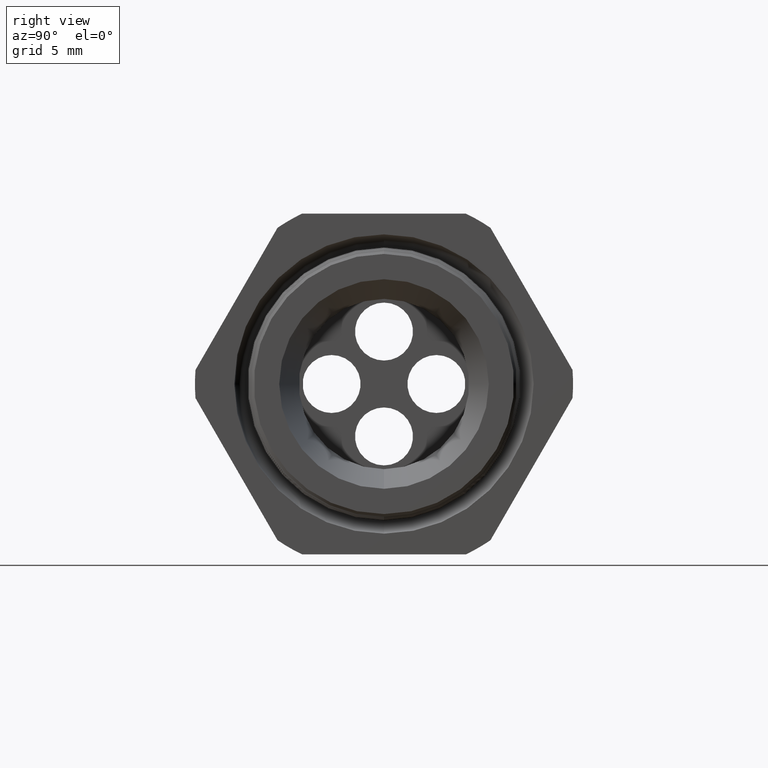
[diagram: clean part render]
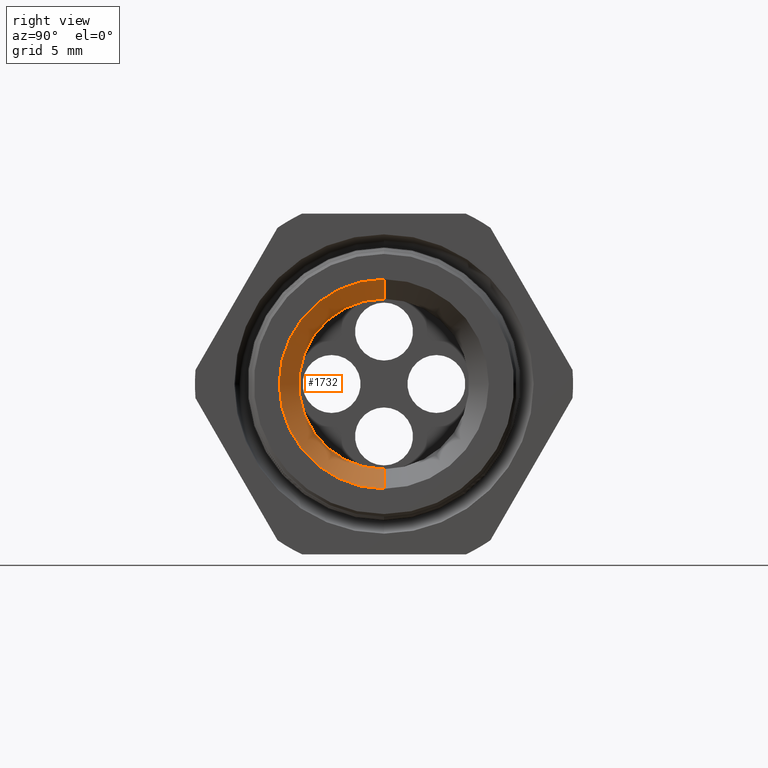
[diagram: same view with one face highlighted and labeled with its STEP entity id]
A machine part, right view. The second image highlights one B-rep face of the part: STEP entity #1732.
In plain terms, the highlighted conical surface has half-angle 3.148 deg.
Its self-contained STEP definition (entity closure, byte-faithful):
#1732 = ADVANCED_FACE ( 'NONE', ( #3979 ), #3977, .F. ) ;
#1733 = EDGE_LOOP ( 'NONE', ( #1734, #1738, #1793, #1796 ) ) ;
#1734 = ORIENTED_EDGE ( 'NONE', *, *, #1735, .F. ) ;
#1735 = EDGE_CURVE ( 'NONE', #1736, #1737, #3972, .T. ) ;
#1736 = VERTEX_POINT ( 'NONE', #3968 ) ;
#1737 = VERTEX_POINT ( 'NONE', #3967 ) ;
#1738 = ORIENTED_EDGE ( 'NONE', *, *, #1791, .T. ) ;
#1791 = EDGE_CURVE ( 'NONE', #1736, #1792, #4051, .T. ) ;
#1792 = VERTEX_POINT ( 'NONE', #4047 ) ;
#1793 = ORIENTED_EDGE ( 'NONE', *, *, #1794, .T. ) ;
#1794 = EDGE_CURVE ( 'NONE', #1792, #1795, #4046, .T. ) ;
#1795 = VERTEX_POINT ( 'NONE', #4104 ) ;
#1796 = ORIENTED_EDGE ( 'NONE', *, *, #1797, .F. ) ;
#1797 = EDGE_CURVE ( 'NONE', #1737, #1795, #4103, .T. ) ;
#3967 = CARTESIAN_POINT ( 'NONE',  ( -0.9454330708661418100, 0.0000000000000000000, -0.2350000000000000100 ) ) ;
#3968 = CARTESIAN_POINT ( 'NONE',  ( -0.9454330708661418100, 2.877919977996280400E-017, 0.2350000000000000100 ) ) ;
#3969 = DIRECTION ( 'NONE',  ( 0.0000000000000000000, 0.0000000000000000000, -1.000000000000000000 ) ) ;
#3970 = DIRECTION ( 'NONE',  ( 1.000000000000000000, 0.0000000000000000000, 0.0000000000000000000 ) ) ;
#3971 = AXIS2_PLACEMENT_3D ( 'NONE', #3978, #3970, #3969 ) ;
#3972 = CIRCLE ( 'NONE', #3971, 0.2350000000000000100 ) ;
#3973 = DIRECTION ( 'NONE',  ( 0.0000000000000000000, 0.0000000000000000000, -1.000000000000000000 ) ) ;
#3974 = DIRECTION ( 'NONE',  ( 1.000000000000000000, 0.0000000000000000000, 0.0000000000000000000 ) ) ;
#3975 = CARTESIAN_POINT ( 'NONE',  ( -0.9454330708661418100, 0.0000000000000000000, 0.0000000000000000000 ) ) ;
#3976 = AXIS2_PLACEMENT_3D ( 'NONE', #3975, #3974, #3973 ) ;
#3977 = CONICAL_SURFACE ( 'NONE', #3976, 0.2350000000000000100, 0.05494131151472639300 ) ;
#3978 = CARTESIAN_POINT ( 'NONE',  ( -0.9454330708661418100, 0.0000000000000000000, 0.0000000000000000000 ) ) ;
#3979 = FACE_OUTER_BOUND ( 'NONE', #1733, .T. ) ;
#4043 = DIRECTION ( 'NONE',  ( 1.000000000000000000, 0.0000000000000000000, 0.0000000000000000000 ) ) ;
#4044 = CARTESIAN_POINT ( 'NONE',  ( 0.03999999999999997300, 0.0000000000000000000, 0.0000000000000000000 ) ) ;
#4045 = AXIS2_PLACEMENT_3D ( 'NONE', #4044, #4043, #4105 ) ;
#4046 = CIRCLE ( 'NONE', #4045, 0.2891955268946231900 ) ;
#4047 = CARTESIAN_POINT ( 'NONE',  ( 0.03999999999999997300, 3.541623763392326200E-017, 0.2891955268946231900 ) ) ;
#4048 = DIRECTION ( 'NONE',  ( 0.9984911057575849300, 6.724985655221754600E-018, 0.05491367519111593100 ) ) ;
#4049 = VECTOR ( 'NONE', #4048, 39.37007874015748100 ) ;
#4050 = CARTESIAN_POINT ( 'NONE',  ( -0.9454330708661418100, 2.877919977996280400E-017, 0.2350000000000000100 ) ) ;
#4051 = LINE ( 'NONE', #4050, #4049 ) ;
#4100 = DIRECTION ( 'NONE',  ( 0.9984911057575849300, 0.0000000000000000000, -0.05491367519111593100 ) ) ;
#4101 = VECTOR ( 'NONE', #4100, 39.37007874015748100 ) ;
#4102 = CARTESIAN_POINT ( 'NONE',  ( -0.9454330708661418100, 0.0000000000000000000, -0.2350000000000000100 ) ) ;
#4103 = LINE ( 'NONE', #4102, #4101 ) ;
#4104 = CARTESIAN_POINT ( 'NONE',  ( 0.03999999999999997300, 0.0000000000000000000, -0.2891955268946231900 ) ) ;
#4105 = DIRECTION ( 'NONE',  ( 0.0000000000000000000, 0.0000000000000000000, -1.000000000000000000 ) ) ;